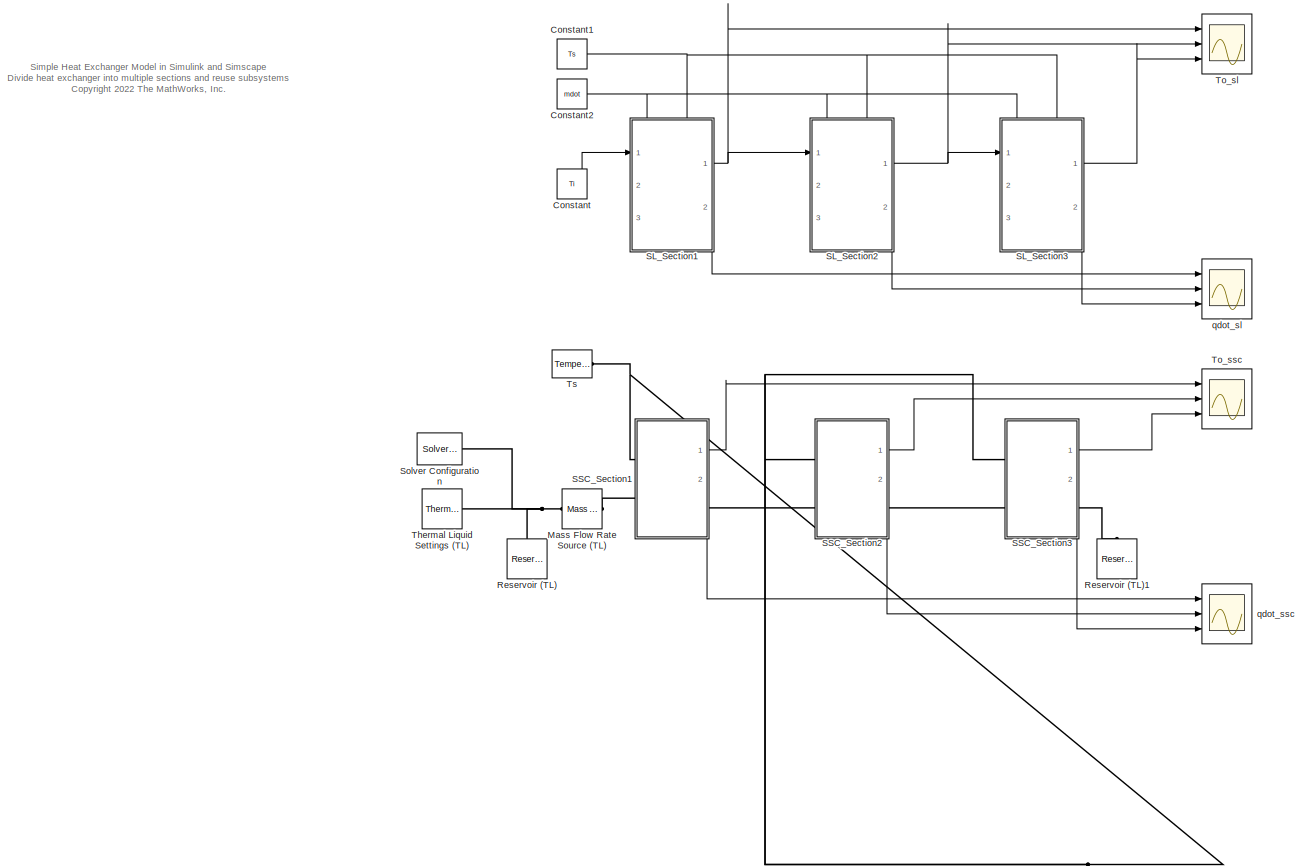
[diagram: root canvas - part 1/1, most of the canvas]
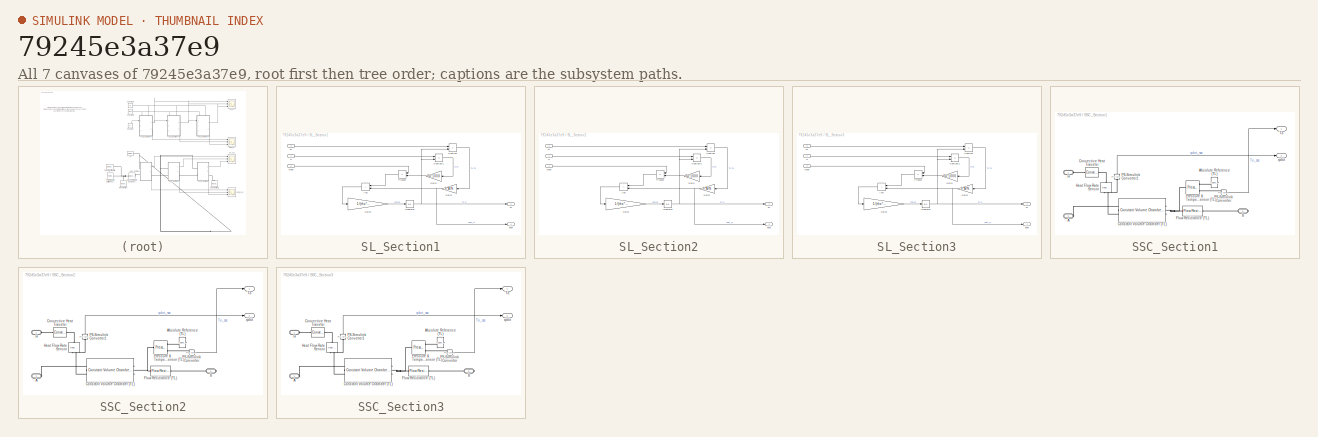
[diagram: thumbnail index - all 7 canvases of the model, root first then tree order]
MODEL slx_79245e3a37e9
KIND model
CONFIG AbsTol = auto
CONFIG EnableMultiTasking = off
CONFIG FixedStep = auto
CONFIG MaxStep = auto
CONFIG MinStep = auto
CONFIG PreLoadFcn = param_SimpleHeatExchanger;
CONFIG RelTol = 1e-3
CONFIG SampleTimeConstraint = Unconstrained
CONFIG SolverName = VariableStepAuto
CONFIG StartTime = 0.0
CONFIG StopTime = 100
BLOCK [Constant] Constant
  NameLocation = top
  Value = Ti
BLOCK [Constant] Constant1
  Value = Ts
BLOCK [Constant] Constant2
  Value = mdot
BLOCK [Reference] Mass Flow Rate Source (TL)  REF=fl_lib/Thermal Liquid/Sources/Mass Flow Rate
Source (TL)
  Ports = [0, 0, 0, 0, 0, 1, 1]
  SourceBlock = fl_lib/Thermal Liquid/Sources/Mass Flow Rate\nSource (TL)
  SourceProductBaseCode = SS
  SourceType = Mass Flow Rate\nSource (TL)
BLOCK [Reference] Reservoir (TL)  REF=fl_lib/Thermal Liquid/Elements/Reservoir (TL)
  NameLocation = right
  Ports = [0, 0, 0, 0, 0, 1]
  SourceBlock = fl_lib/Thermal Liquid/Elements/Reservoir (TL)
  SourceProductBaseCode = SS
  SourceType = Reservoir (TL)
BLOCK [Reference] Reservoir (TL)1  REF=fl_lib/Thermal Liquid/Elements/Reservoir (TL)
  NameLocation = right
  Ports = [0, 0, 0, 0, 0, 1]
  SourceBlock = fl_lib/Thermal Liquid/Elements/Reservoir (TL)
  SourceProductBaseCode = SS
  SourceType = Reservoir (TL)
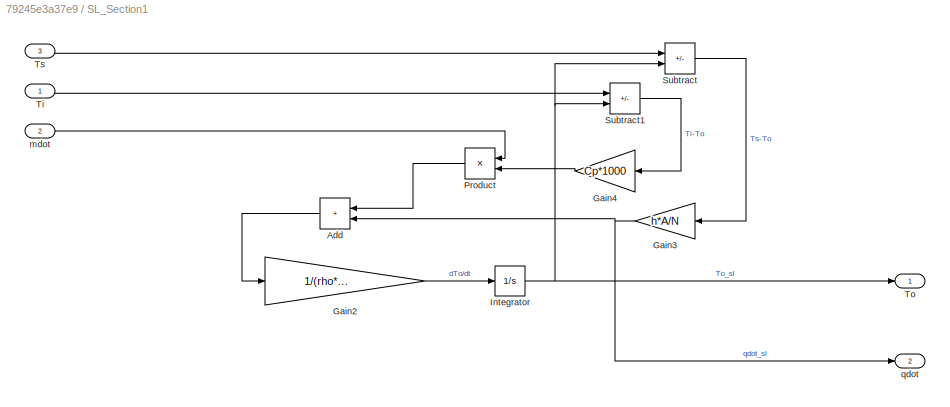
BLOCK [SubSystem] SL_Section1
  PortSchema = {"entries":[{"content":{"sides":[{"content":{"connectorIds":["In1"]},"type":"ConnectorPlacement.EquallySpacedRectSide","uuid":"2ac987d6-ed01-4499-8209-f9f923f9f0e2"},{"content":{"connectorIds":["Out1"],"side":"RIGHT"},"type":"ConnectorPlacement.EquallySpacedRectSide","uuid":"56b4ad12-2c96-4961-97da-ac61e818b26b"},{"content":{"connectorIds":["In2","In3"],"side":"TOP"},"type":"ConnectorPlacement.Equ...<+401ch>  <repeated x3 — deduplicated; at blocks: SL_Section1, SL_Section2, SL_Section3>
  Ports = [3, 2]
  RequestExecContextInheritance = off
BLOCK [Sum] SL_Section1/Add
  IconShape = rectangular
  Ports = [2, 1]
BLOCK [Gain] SL_Section1/Gain2
  Gain = 1/(rho*V/N*Cp*1000)
BLOCK [Gain] SL_Section1/Gain3
  Gain = h*A/N
BLOCK [Gain] SL_Section1/Gain4
  Gain = Cp*1000
BLOCK [Integrator] SL_Section1/Integrator
  InitialCondition = T0
  Ports = [1, 1]
BLOCK [Product] SL_Section1/Product
  Ports = [2, 1]
BLOCK [Sum] SL_Section1/Subtract
  IconShape = rectangular
  Inputs = +-
  Ports = [2, 1]
BLOCK [Sum] SL_Section1/Subtract1
  IconShape = rectangular
  Inputs = +-
  Ports = [2, 1]
BLOCK [Inport] SL_Section1/Ti
BLOCK [Outport] SL_Section1/To
BLOCK [Inport] SL_Section1/Ts
  Port = 3
BLOCK [Inport] SL_Section1/mdot
  Port = 2
BLOCK [Outport] SL_Section1/qdot
  Port = 2
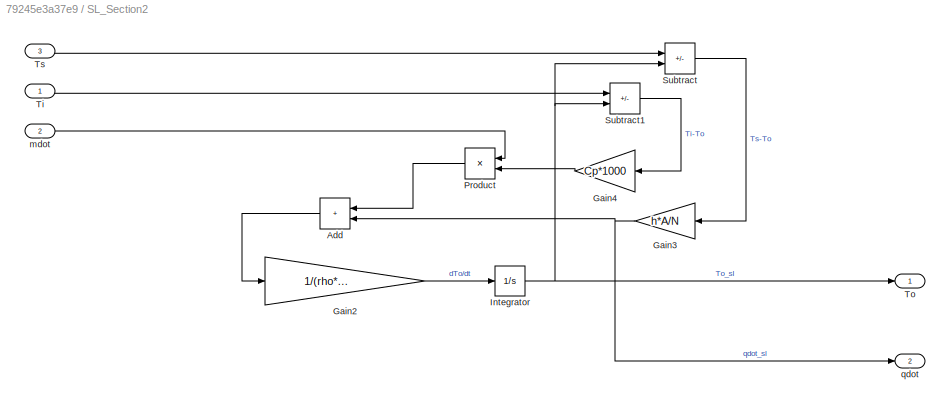
BLOCK [SubSystem] SL_Section2
  Ports = [3, 2]
  RequestExecContextInheritance = off
BLOCK [Sum] SL_Section2/Add
  IconShape = rectangular
  Ports = [2, 1]
BLOCK [Gain] SL_Section2/Gain2
  Gain = 1/(rho*V/N*Cp*1000)
BLOCK [Gain] SL_Section2/Gain3
  Gain = h*A/N
BLOCK [Gain] SL_Section2/Gain4
  Gain = Cp*1000
BLOCK [Integrator] SL_Section2/Integrator
  InitialCondition = T0
  Ports = [1, 1]
BLOCK [Product] SL_Section2/Product
  Ports = [2, 1]
BLOCK [Sum] SL_Section2/Subtract
  IconShape = rectangular
  Inputs = +-
  Ports = [2, 1]
BLOCK [Sum] SL_Section2/Subtract1
  IconShape = rectangular
  Inputs = +-
  Ports = [2, 1]
BLOCK [Inport] SL_Section2/Ti
BLOCK [Outport] SL_Section2/To
BLOCK [Inport] SL_Section2/Ts
  Port = 3
BLOCK [Inport] SL_Section2/mdot
  Port = 2
BLOCK [Outport] SL_Section2/qdot
  Port = 2
BLOCK [SubSystem] SL_Section3
  Ports = [3, 2]
  RequestExecContextInheritance = off
BLOCK [Sum] SL_Section3/Add
  IconShape = rectangular
  Ports = [2, 1]
BLOCK [Gain] SL_Section3/Gain2
  Gain = 1/(rho*V/N*Cp*1000)
BLOCK [Gain] SL_Section3/Gain3
  Gain = h*A/N
BLOCK [Gain] SL_Section3/Gain4
  Gain = Cp*1000
BLOCK [Integrator] SL_Section3/Integrator
  InitialCondition = T0
  Ports = [1, 1]
BLOCK [Product] SL_Section3/Product
  Ports = [2, 1]
BLOCK [Sum] SL_Section3/Subtract
  IconShape = rectangular
  Inputs = +-
  Ports = [2, 1]
BLOCK [Sum] SL_Section3/Subtract1
  IconShape = rectangular
  Inputs = +-
  Ports = [2, 1]
BLOCK [Inport] SL_Section3/Ti
BLOCK [Outport] SL_Section3/To
BLOCK [Inport] SL_Section3/Ts
  Port = 3
BLOCK [Inport] SL_Section3/mdot
  Port = 2
BLOCK [Outport] SL_Section3/qdot
  Port = 2
BLOCK [SubSystem] SSC_Section1
  PortSchema = {"entries":[{"content":{"sides":[{"content":{"connectorIds":["LConn1","LConn2"]},"type":"ConnectorPlacement.EquallySpacedRectSide","uuid":"abf5b1c4-7441-405f-a58a-7bdd24a3fb55"},{"content":{"connectorIds":["Out1","RConn1"],"side":"RIGHT"},"type":"ConnectorPlacement.EquallySpacedRectSide","uuid":"12ce1901-5b03-456d-abb5-e0fb68dfd145"},{"content":{"connectorIds":[],"side":"TOP"},"type":"ConnectorPla...<+411ch>  <repeated x3 — deduplicated; at blocks: SSC_Section1, SSC_Section2, SSC_Section3>
  Ports = [0, 2, 0, 0, 0, 2, 1]
  RequestExecContextInheritance = off
BLOCK [PMIOPort] SSC_Section1/A
  Port = 2
  Side = Left
BLOCK [Reference] SSC_Section1/Absolute Reference (TL)  REF=fl_lib/Thermal Liquid/Elements/Absolute Reference
(TL)
  NameLocation = top
  Ports = [0, 0, 0, 0, 0, 1]
  SourceBlock = fl_lib/Thermal Liquid/Elements/Absolute Reference\n(TL)
  SourceProductBaseCode = SS
  SourceType = Absolute Reference\n(TL)
BLOCK [PMIOPort] SSC_Section1/B
  Port = 3
  Side = Right
BLOCK [Reference] SSC_Section1/Constant Volume Chamber (TL)  REF=fl_lib/Thermal Liquid/Elements/Constant Volume
Chamber (TL)
  NameLocation = top
  Ports = [0, 0, 0, 0, 0, 2, 1]
  SourceBlock = fl_lib/Thermal Liquid/Elements/Constant Volume\nChamber (TL)
  SourceProductBaseCode = SS
  SourceType = Constant Volume\nChamber (TL)
BLOCK [Reference] SSC_Section1/Convective Heat Transfer  REF=fl_lib/Thermal/Thermal Elements/Convective Heat
Transfer
  Ports = [0, 0, 0, 0, 0, 1, 1]
  SourceBlock = fl_lib/Thermal/Thermal Elements/Convective Heat\nTransfer
  SourceProductBaseCode = SS
  SourceType = Convective Heat\nTransfer
BLOCK [Reference] SSC_Section1/Flow Resistance (TL)  REF=fl_lib/Thermal Liquid/Elements/Flow Resistance (TL)
  Ports = [0, 0, 0, 0, 0, 1, 1]
  SourceBlock = fl_lib/Thermal Liquid/Elements/Flow Resistance (TL)
  SourceProductBaseCode = SS
  SourceType = Flow Resistance (TL)
BLOCK [PMIOPort] SSC_Section1/H
  Side = Left
BLOCK [Reference] SSC_Section1/Heat Flow Rate Sensor  REF=fl_lib/Thermal/Thermal Sensors/Heat Flow Rate
Sensor
  NameLocation = left
  Ports = [0, 0, 0, 0, 0, 1, 2]
  SourceBlock = fl_lib/Thermal/Thermal Sensors/Heat Flow Rate\nSensor
  SourceProductBaseCode = SS
  SourceType = Heat Flow Rate\nSensor
BLOCK [Reference] SSC_Section1/PS-Simulink Converter  REF=nesl_utility/PS-Simulink
Converter
  Ports = [0, 1, 0, 0, 0, 1]
  SourceBlock = nesl_utility/PS-Simulink\nConverter
  SourceProductBaseCode = PW,SS
  SourceType = PS-Simulink\nConverter
BLOCK [Reference] SSC_Section1/PS-Simulink Converter1  REF=nesl_utility/PS-Simulink
Converter
  NameLocation = right
  Ports = [0, 1, 0, 0, 0, 1]
  SourceBlock = nesl_utility/PS-Simulink\nConverter
  SourceProductBaseCode = PW,SS
  SourceType = PS-Simulink\nConverter
BLOCK [Reference] SSC_Section1/Pressure & Temperature Sensor (TL)  REF=fl_lib/Thermal Liquid/Sensors/Pressure &
Temperature Sensor
(TL)
  Ports = [0, 0, 0, 0, 0, 1, 3]
  SourceBlock = fl_lib/Thermal Liquid/Sensors/Pressure &\nTemperature Sensor\n(TL)
  SourceProductBaseCode = SS
  SourceType = Pressure &\nTemperature Sensor\n(TL)
BLOCK [Outport] SSC_Section1/To
BLOCK [Outport] SSC_Section1/qdot
  Port = 2
BLOCK [SubSystem] SSC_Section2
  Ports = [0, 2, 0, 0, 0, 2, 1]
  RequestExecContextInheritance = off
BLOCK [PMIOPort] SSC_Section2/A
  Port = 2
  Side = Left
BLOCK [Reference] SSC_Section2/Absolute Reference (TL)  REF=fl_lib/Thermal Liquid/Elements/Absolute Reference
(TL)
  NameLocation = top
  Ports = [0, 0, 0, 0, 0, 1]
  SourceBlock = fl_lib/Thermal Liquid/Elements/Absolute Reference\n(TL)
  SourceProductBaseCode = SS
  SourceType = Absolute Reference\n(TL)
BLOCK [PMIOPort] SSC_Section2/B
  Port = 3
  Side = Right
BLOCK [Reference] SSC_Section2/Constant Volume Chamber (TL)  REF=fl_lib/Thermal Liquid/Elements/Constant Volume
Chamber (TL)
  NameLocation = top
  Ports = [0, 0, 0, 0, 0, 2, 1]
  SourceBlock = fl_lib/Thermal Liquid/Elements/Constant Volume\nChamber (TL)
  SourceProductBaseCode = SS
  SourceType = Constant Volume\nChamber (TL)
BLOCK [Reference] SSC_Section2/Convective Heat Transfer  REF=fl_lib/Thermal/Thermal Elements/Convective Heat
Transfer
  Ports = [0, 0, 0, 0, 0, 1, 1]
  SourceBlock = fl_lib/Thermal/Thermal Elements/Convective Heat\nTransfer
  SourceProductBaseCode = SS
  SourceType = Convective Heat\nTransfer
BLOCK [Reference] SSC_Section2/Flow Resistance (TL)  REF=fl_lib/Thermal Liquid/Elements/Flow Resistance (TL)
  Ports = [0, 0, 0, 0, 0, 1, 1]
  SourceBlock = fl_lib/Thermal Liquid/Elements/Flow Resistance (TL)
  SourceProductBaseCode = SS
  SourceType = Flow Resistance (TL)
BLOCK [PMIOPort] SSC_Section2/H
  Side = Left
BLOCK [Reference] SSC_Section2/Heat Flow Rate Sensor  REF=fl_lib/Thermal/Thermal Sensors/Heat Flow Rate
Sensor
  NameLocation = left
  Ports = [0, 0, 0, 0, 0, 1, 2]
  SourceBlock = fl_lib/Thermal/Thermal Sensors/Heat Flow Rate\nSensor
  SourceProductBaseCode = SS
  SourceType = Heat Flow Rate\nSensor
BLOCK [Reference] SSC_Section2/PS-Simulink Converter  REF=nesl_utility/PS-Simulink
Converter
  Ports = [0, 1, 0, 0, 0, 1]
  SourceBlock = nesl_utility/PS-Simulink\nConverter
  SourceProductBaseCode = PW,SS
  SourceType = PS-Simulink\nConverter
BLOCK [Reference] SSC_Section2/PS-Simulink Converter1  REF=nesl_utility/PS-Simulink
Converter
  NameLocation = right
  Ports = [0, 1, 0, 0, 0, 1]
  SourceBlock = nesl_utility/PS-Simulink\nConverter
  SourceProductBaseCode = PW,SS
  SourceType = PS-Simulink\nConverter
BLOCK [Reference] SSC_Section2/Pressure & Temperature Sensor (TL)  REF=fl_lib/Thermal Liquid/Sensors/Pressure &
Temperature Sensor
(TL)
  Ports = [0, 0, 0, 0, 0, 1, 3]
  SourceBlock = fl_lib/Thermal Liquid/Sensors/Pressure &\nTemperature Sensor\n(TL)
  SourceProductBaseCode = SS
  SourceType = Pressure &\nTemperature Sensor\n(TL)
BLOCK [Outport] SSC_Section2/To
BLOCK [Outport] SSC_Section2/qdot
  Port = 2
BLOCK [SubSystem] SSC_Section3
  Ports = [0, 2, 0, 0, 0, 2, 1]
  RequestExecContextInheritance = off
BLOCK [PMIOPort] SSC_Section3/A
  Port = 2
  Side = Left
BLOCK [Reference] SSC_Section3/Absolute Reference (TL)  REF=fl_lib/Thermal Liquid/Elements/Absolute Reference
(TL)
  NameLocation = top
  Ports = [0, 0, 0, 0, 0, 1]
  SourceBlock = fl_lib/Thermal Liquid/Elements/Absolute Reference\n(TL)
  SourceProductBaseCode = SS
  SourceType = Absolute Reference\n(TL)
BLOCK [PMIOPort] SSC_Section3/B
  Port = 3
  Side = Right
BLOCK [Reference] SSC_Section3/Constant Volume Chamber (TL)  REF=fl_lib/Thermal Liquid/Elements/Constant Volume
Chamber (TL)
  NameLocation = top
  Ports = [0, 0, 0, 0, 0, 2, 1]
  SourceBlock = fl_lib/Thermal Liquid/Elements/Constant Volume\nChamber (TL)
  SourceProductBaseCode = SS
  SourceType = Constant Volume\nChamber (TL)
BLOCK [Reference] SSC_Section3/Convective Heat Transfer  REF=fl_lib/Thermal/Thermal Elements/Convective Heat
Transfer
  Ports = [0, 0, 0, 0, 0, 1, 1]
  SourceBlock = fl_lib/Thermal/Thermal Elements/Convective Heat\nTransfer
  SourceProductBaseCode = SS
  SourceType = Convective Heat\nTransfer
BLOCK [Reference] SSC_Section3/Flow Resistance (TL)  REF=fl_lib/Thermal Liquid/Elements/Flow Resistance (TL)
  Ports = [0, 0, 0, 0, 0, 1, 1]
  SourceBlock = fl_lib/Thermal Liquid/Elements/Flow Resistance (TL)
  SourceProductBaseCode = SS
  SourceType = Flow Resistance (TL)
BLOCK [PMIOPort] SSC_Section3/H
  Side = Left
BLOCK [Reference] SSC_Section3/Heat Flow Rate Sensor  REF=fl_lib/Thermal/Thermal Sensors/Heat Flow Rate
Sensor
  NameLocation = left
  Ports = [0, 0, 0, 0, 0, 1, 2]
  SourceBlock = fl_lib/Thermal/Thermal Sensors/Heat Flow Rate\nSensor
  SourceProductBaseCode = SS
  SourceType = Heat Flow Rate\nSensor
BLOCK [Reference] SSC_Section3/PS-Simulink Converter  REF=nesl_utility/PS-Simulink
Converter
  Ports = [0, 1, 0, 0, 0, 1]
  SourceBlock = nesl_utility/PS-Simulink\nConverter
  SourceProductBaseCode = PW,SS
  SourceType = PS-Simulink\nConverter
BLOCK [Reference] SSC_Section3/PS-Simulink Converter1  REF=nesl_utility/PS-Simulink
Converter
  NameLocation = right
  Ports = [0, 1, 0, 0, 0, 1]
  SourceBlock = nesl_utility/PS-Simulink\nConverter
  SourceProductBaseCode = PW,SS
  SourceType = PS-Simulink\nConverter
BLOCK [Reference] SSC_Section3/Pressure & Temperature Sensor (TL)  REF=fl_lib/Thermal Liquid/Sensors/Pressure &
Temperature Sensor
(TL)
  Ports = [0, 0, 0, 0, 0, 1, 3]
  SourceBlock = fl_lib/Thermal Liquid/Sensors/Pressure &\nTemperature Sensor\n(TL)
  SourceProductBaseCode = SS
  SourceType = Pressure &\nTemperature Sensor\n(TL)
BLOCK [Outport] SSC_Section3/To
BLOCK [Outport] SSC_Section3/qdot
  Port = 2
BLOCK [Reference] Solver Configuration  REF=nesl_utility/Solver
Configuration
  Ports = [0, 0, 0, 0, 0, 0, 1]
  SourceBlock = nesl_utility/Solver\nConfiguration
  SourceProductBaseCode = PW,SS
  SourceType = Solver\nConfiguration
BLOCK [Reference] Thermal Liquid Settings (TL)  REF=fl_lib/Thermal Liquid/Utilities/Thermal Liquid
Settings (TL)
  Ports = [0, 0, 0, 0, 0, 0, 1]
  SourceBlock = fl_lib/Thermal Liquid/Utilities/Thermal Liquid\nSettings (TL)
  SourceProductBaseCode = SS
  SourceType = Thermal Liquid\nSettings (TL)
BLOCK [Scope] To_sl
  Floating = off
  NumInputPorts = 3
  Ports = [3]
  ScopeSpecificationString = Simulink.scopes.TimeScopeBlockCfg('CurrentConfiguration', extmgr.ConfigurationSet(extmgr.Configuration('Core','General UI',true),extmgr.Configuration('Core','Source UI',true),extmgr.Configuration('Sources','WiredSimulink',true),extmgr.Configuration('Visuals','Time Domain',true,'SerializedDisplays',{struct('MinYLimReal','60','MaxYLimReal','120','YLabelReal','','MinYLimMag','70.66763','MaxYLimMag','...<+1408ch>
BLOCK [Scope] To_ssc
  Floating = off
  NumInputPorts = 3
  Ports = [3]
  ScopeSpecificationString = Simulink.scopes.TimeScopeBlockCfg('CurrentConfiguration', extmgr.ConfigurationSet(extmgr.Configuration('Core','General UI',true),extmgr.Configuration('Core','Source UI',true),extmgr.Configuration('Sources','WiredSimulink',true,'DataLoggingVariableName','ScopeData1'),extmgr.Configuration('Visuals','Time Domain',true,'SerializedDisplays',{struct('MinYLimReal','60','MaxYLimReal','120','YLabelReal',''...<+1450ch>
BLOCK [Reference] Ts  REF=fl_lib/Thermal/Thermal Sources/Temperature Source
  Ports = [0, 0, 0, 0, 0, 1]
  SourceBlock = fl_lib/Thermal/Thermal Sources/Temperature Source
  SourceProductBaseCode = SS
  SourceType = Temperature Source
BLOCK [Scope] qdot_sl
  Floating = off
  NumInputPorts = 3
  Ports = [3]
  ScopeSpecificationString = Simulink.scopes.TimeScopeBlockCfg('CurrentConfiguration', extmgr.ConfigurationSet(extmgr.Configuration('Core','General UI',true),extmgr.Configuration('Core','Source UI',true),extmgr.Configuration('Sources','WiredSimulink',true,'DataLoggingVariableName','ScopeData2'),extmgr.Configuration('Visuals','Time Domain',true,'SerializedDisplays',{struct('MinYLimReal','1e6','MaxYLimReal','3e6','YLabelReal','...<+1473ch>
BLOCK [Scope] qdot_ssc
  Floating = off
  NumInputPorts = 3
  Ports = [3]
  ScopeSpecificationString = Simulink.scopes.TimeScopeBlockCfg('CurrentConfiguration', extmgr.ConfigurationSet(extmgr.Configuration('Core','General UI',true),extmgr.Configuration('Core','Source UI',true),extmgr.Configuration('Sources','WiredSimulink',true,'DataLoggingVariableName','ScopeData3'),extmgr.Configuration('Visuals','Time Domain',true,'SerializedDisplays',{struct('MinYLimReal','1e6','MaxYLimReal','3e6','YLabelReal','...<+1477ch>
ANNOTATION (root): Simple Heat Exchanger Model in Simulink and Simscape Divide heat exchanger into multiple sections and reuse subsystems <copyright redacted>
NET Constant1:1 -> SL_Section1:3, SL_Section2:3, SL_Section3:3
NET Constant2:1 -> SL_Section1:2, SL_Section2:2, SL_Section3:2
LINE Constant:1 -> SL_Section1:1
LINE SL_Section1/Add:1 -> SL_Section1/Gain2:1
LINE SL_Section1/Gain2:1 -> SL_Section1/Integrator:1
NET SL_Section1/Gain3:1 -> SL_Section1/Add:2, SL_Section1/qdot:1
LINE SL_Section1/Gain4:1 -> SL_Section1/Product:2
NET SL_Section1/Integrator:1 -> SL_Section1/Subtract1:2, SL_Section1/Subtract:2, SL_Section1/To:1
LINE SL_Section1/Product:1 -> SL_Section1/Add:1
LINE SL_Section1/Subtract1:1 -> SL_Section1/Gain4:1
LINE SL_Section1/Subtract:1 -> SL_Section1/Gain3:1
LINE SL_Section1/Ti:1 -> SL_Section1/Subtract1:1
LINE SL_Section1/Ts:1 -> SL_Section1/Subtract:1
LINE SL_Section1/mdot:1 -> SL_Section1/Product:1
NET SL_Section1:1 -> SL_Section2:1, To_sl:1
LINE SL_Section1:2 -> qdot_sl:1
LINE SL_Section2/Add:1 -> SL_Section2/Gain2:1
LINE SL_Section2/Gain2:1 -> SL_Section2/Integrator:1
NET SL_Section2/Gain3:1 -> SL_Section2/Add:2, SL_Section2/qdot:1
LINE SL_Section2/Gain4:1 -> SL_Section2/Product:2
NET SL_Section2/Integrator:1 -> SL_Section2/Subtract1:2, SL_Section2/Subtract:2, SL_Section2/To:1
LINE SL_Section2/Product:1 -> SL_Section2/Add:1
LINE SL_Section2/Subtract1:1 -> SL_Section2/Gain4:1
LINE SL_Section2/Subtract:1 -> SL_Section2/Gain3:1
LINE SL_Section2/Ti:1 -> SL_Section2/Subtract1:1
LINE SL_Section2/Ts:1 -> SL_Section2/Subtract:1
LINE SL_Section2/mdot:1 -> SL_Section2/Product:1
NET SL_Section2:1 -> SL_Section3:1, To_sl:2
LINE SL_Section2:2 -> qdot_sl:2
LINE SL_Section3/Add:1 -> SL_Section3/Gain2:1
LINE SL_Section3/Gain2:1 -> SL_Section3/Integrator:1
NET SL_Section3/Gain3:1 -> SL_Section3/Add:2, SL_Section3/qdot:1
LINE SL_Section3/Gain4:1 -> SL_Section3/Product:2
NET SL_Section3/Integrator:1 -> SL_Section3/Subtract1:2, SL_Section3/Subtract:2, SL_Section3/To:1
LINE SL_Section3/Product:1 -> SL_Section3/Add:1
LINE SL_Section3/Subtract1:1 -> SL_Section3/Gain4:1
LINE SL_Section3/Subtract:1 -> SL_Section3/Gain3:1
LINE SL_Section3/Ti:1 -> SL_Section3/Subtract1:1
LINE SL_Section3/Ts:1 -> SL_Section3/Subtract:1
LINE SL_Section3/mdot:1 -> SL_Section3/Product:1
LINE SL_Section3:1 -> To_sl:3
LINE SL_Section3:2 -> qdot_sl:3
LINE SSC_Section1/PS-Simulink Converter1:1 -> SSC_Section1/qdot:1
LINE SSC_Section1/PS-Simulink Converter:1 -> SSC_Section1/To:1
LINE SSC_Section1:1 -> To_ssc:1
LINE SSC_Section1:2 -> qdot_ssc:1
LINE SSC_Section2/PS-Simulink Converter1:1 -> SSC_Section2/qdot:1
LINE SSC_Section2/PS-Simulink Converter:1 -> SSC_Section2/To:1
LINE SSC_Section2:1 -> To_ssc:2
LINE SSC_Section2:2 -> qdot_ssc:2
LINE SSC_Section3/PS-Simulink Converter1:1 -> SSC_Section3/qdot:1
LINE SSC_Section3/PS-Simulink Converter:1 -> SSC_Section3/To:1
LINE SSC_Section3:1 -> To_ssc:3
LINE SSC_Section3:2 -> qdot_ssc:3
PNET net1: Mass Flow Rate Source (TL):LConn1 -- Reservoir (TL):LConn1 -- Solver Configuration:RConn1 -- Thermal Liquid Settings (TL):RConn1
PLINE Mass Flow Rate Source (TL):RConn1 -- SSC_Section1:LConn2
PLINE Reservoir (TL)1:LConn1 -- SSC_Section3:RConn1
PLINE SSC_Section1/A:RConn1 -- SSC_Section1/Constant Volume Chamber (TL):LConn1
PLINE SSC_Section1/Absolute Reference (TL):LConn1 -- SSC_Section1/Pressure & Temperature Sensor (TL):RConn1
PLINE SSC_Section1/B:RConn1 -- SSC_Section1/Flow Resistance (TL):RConn1
PLINE SSC_Section1/Constant Volume Chamber (TL):LConn2 -- SSC_Section1/Heat Flow Rate Sensor:RConn2
PNET net2: SSC_Section1/Constant Volume Chamber (TL):RConn1 -- SSC_Section1/Flow Resistance (TL):LConn1 -- SSC_Section1/Pressure & Temperature Sensor (TL):LConn1
PLINE SSC_Section1/Convective Heat Transfer:LConn1 -- SSC_Section1/H:RConn1
PLINE SSC_Section1/Convective Heat Transfer:RConn1 -- SSC_Section1/Heat Flow Rate Sensor:LConn1
PLINE SSC_Section1/Heat Flow Rate Sensor:RConn1 -- SSC_Section1/PS-Simulink Converter1:LConn1
PLINE SSC_Section1/PS-Simulink Converter:LConn1 -- SSC_Section1/Pressure & Temperature Sensor (TL):RConn3
PNET net3: SSC_Section1:LConn1 -- SSC_Section2:LConn1 -- SSC_Section3:LConn1 -- Ts:LConn1
PLINE SSC_Section1:RConn1 -- SSC_Section2:LConn2
PLINE SSC_Section2/A:RConn1 -- SSC_Section2/Constant Volume Chamber (TL):LConn1
PLINE SSC_Section2/Absolute Reference (TL):LConn1 -- SSC_Section2/Pressure & Temperature Sensor (TL):RConn1
PLINE SSC_Section2/B:RConn1 -- SSC_Section2/Flow Resistance (TL):RConn1
PLINE SSC_Section2/Constant Volume Chamber (TL):LConn2 -- SSC_Section2/Heat Flow Rate Sensor:RConn2
PNET net4: SSC_Section2/Constant Volume Chamber (TL):RConn1 -- SSC_Section2/Flow Resistance (TL):LConn1 -- SSC_Section2/Pressure & Temperature Sensor (TL):LConn1
PLINE SSC_Section2/Convective Heat Transfer:LConn1 -- SSC_Section2/H:RConn1
PLINE SSC_Section2/Convective Heat Transfer:RConn1 -- SSC_Section2/Heat Flow Rate Sensor:LConn1
PLINE SSC_Section2/Heat Flow Rate Sensor:RConn1 -- SSC_Section2/PS-Simulink Converter1:LConn1
PLINE SSC_Section2/PS-Simulink Converter:LConn1 -- SSC_Section2/Pressure & Temperature Sensor (TL):RConn3
PLINE SSC_Section2:RConn1 -- SSC_Section3:LConn2
PLINE SSC_Section3/A:RConn1 -- SSC_Section3/Constant Volume Chamber (TL):LConn1
PLINE SSC_Section3/Absolute Reference (TL):LConn1 -- SSC_Section3/Pressure & Temperature Sensor (TL):RConn1
PLINE SSC_Section3/B:RConn1 -- SSC_Section3/Flow Resistance (TL):RConn1
PLINE SSC_Section3/Constant Volume Chamber (TL):LConn2 -- SSC_Section3/Heat Flow Rate Sensor:RConn2
PNET net5: SSC_Section3/Constant Volume Chamber (TL):RConn1 -- SSC_Section3/Flow Resistance (TL):LConn1 -- SSC_Section3/Pressure & Temperature Sensor (TL):LConn1
PLINE SSC_Section3/Convective Heat Transfer:LConn1 -- SSC_Section3/H:RConn1
PLINE SSC_Section3/Convective Heat Transfer:RConn1 -- SSC_Section3/Heat Flow Rate Sensor:LConn1
PLINE SSC_Section3/Heat Flow Rate Sensor:RConn1 -- SSC_Section3/PS-Simulink Converter1:LConn1
PLINE SSC_Section3/PS-Simulink Converter:LConn1 -- SSC_Section3/Pressure & Temperature Sensor (TL):RConn3
note: NET lines group one-source signal fan-out (src -> all destinations, sorted); 1:1 wires keep LINE; PNET lines group multi-terminal physical nets as a canonical sorted terminal list (undirected conserving connections); 2-terminal nets keep the pairwise PLINE form
